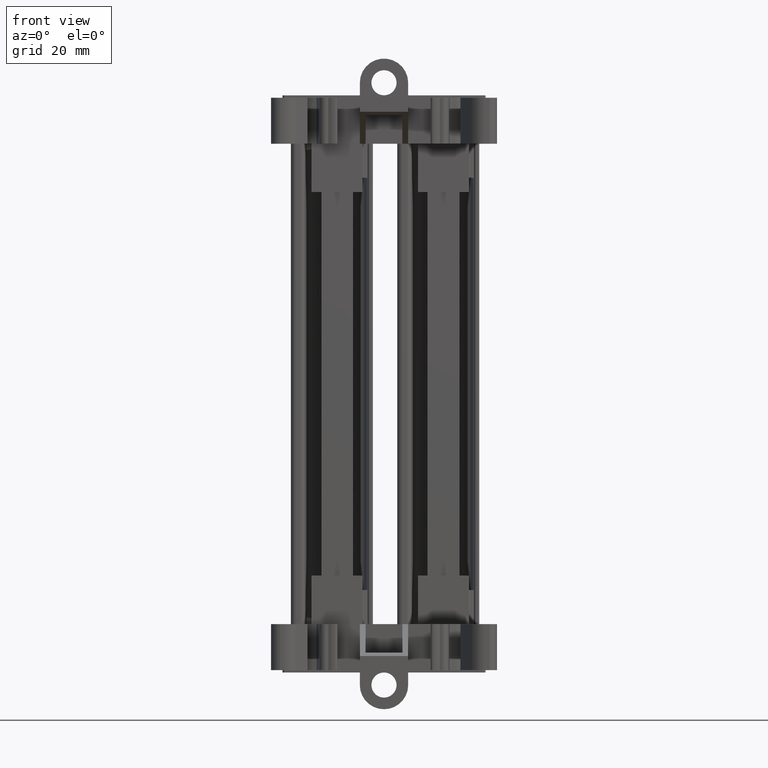
[diagram: clean part render]
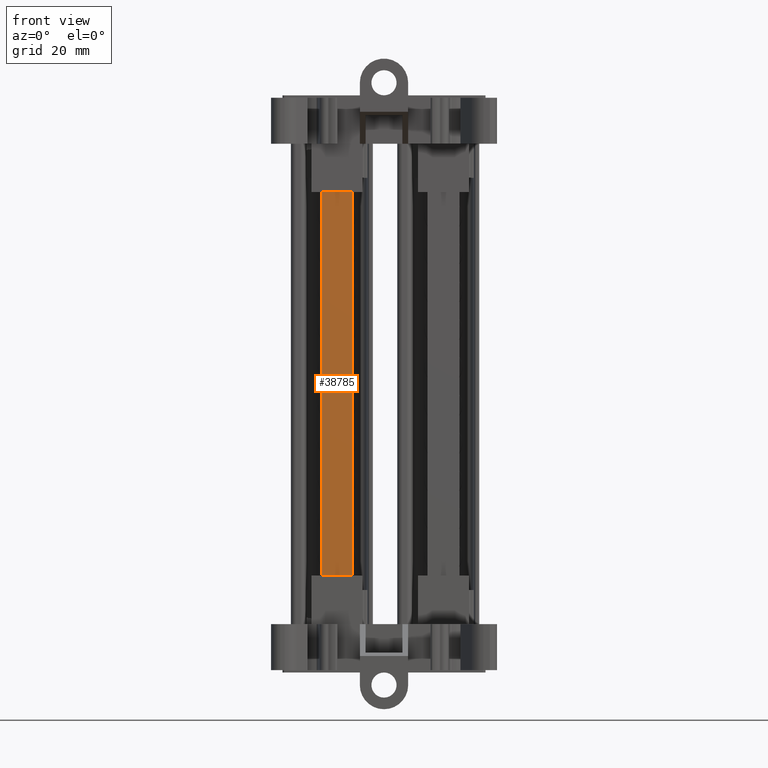
[diagram: same view with one face highlighted and labeled with its STEP entity id]
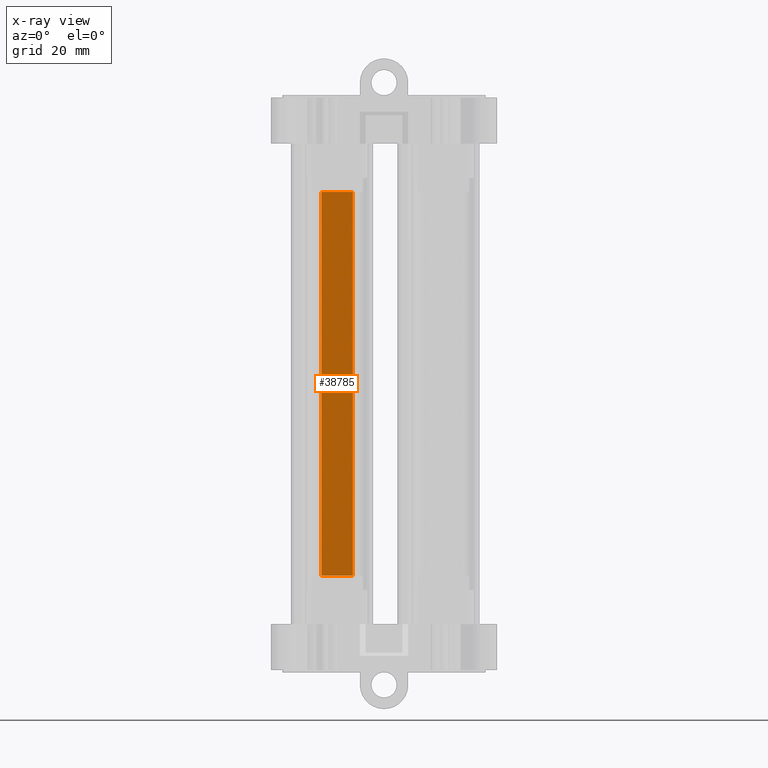
[diagram: x-ray of the same camera — body ghosted, the highlighted face saturated]
A machine part, front view. The second image highlights one B-rep face of the part: STEP entity #38785.
The next image is the same camera in x-ray: the body ghosted, the highlighted face saturated — about 0% of this face is hidden behind the body in this view.
In plain terms, the highlighted planar face has unit normal (-0, 1, -0).
Its self-contained STEP definition (entity closure, byte-faithful):
#1041 = CARTESIAN_POINT ( 'NONE',  ( -59.75163004031018200, 12.93386505222998700, -32.58018049458240000 ) ) ;
#1042 = DIRECTION ( 'NONE',  ( 0.0000000000000000000, 7.965850201685501300E-015, 1.000000000000000000 ) ) ;
#1052 = PLANE ( 'NONE',  #71637 ) ;
#1065 = DIRECTION ( 'NONE',  ( -7.965850201685501300E-015, 1.000000000000000000, -7.965850201685501300E-015 ) ) ;
#1084 = FACE_OUTER_BOUND ( 'NONE', #63528, .T. ) ;
#2229 = EDGE_CURVE ( 'NONE', #31991, #4538, #21883, .T. ) ;
#2459 = EDGE_CURVE ( 'NONE', #4448, #31943, #22232, .T. ) ;
#4448 = VERTEX_POINT ( 'NONE', #23546 ) ;
#4538 = VERTEX_POINT ( 'NONE', #23663 ) ;
#8254 = VECTOR ( 'NONE', #21879, 1000.000000000000000 ) ;
#14337 = EDGE_CURVE ( 'NONE', #4448, #4538, #43835, .T. ) ;
#17985 = VECTOR ( 'NONE', #43845, 1000.000000000000000 ) ;
#21856 = CARTESIAN_POINT ( 'NONE',  ( -53.25163004031017500, 12.93386505223004000, -32.58018049458240000 ) ) ;
#21879 = DIRECTION ( 'NONE',  ( 6.938893903895729800E-018, -7.965850201685501300E-015, -1.000000000000000000 ) ) ;
#21883 = LINE ( 'NONE', #21856, #8254 ) ;
#22194 = DIRECTION ( 'NONE',  ( -6.938893903895729800E-018, 7.965850201685501300E-015, 1.000000000000000000 ) ) ;
#22232 = LINE ( 'NONE', #22240, #34589 ) ;
#22240 = CARTESIAN_POINT ( 'NONE',  ( -59.75163004031017500, 12.93386505222998700, -32.58018049458238600 ) ) ;
#23546 = CARTESIAN_POINT ( 'NONE',  ( -59.75163004029732900, 12.93396610590398100, -22.12168353174844900 ) ) ;
#23663 = CARTESIAN_POINT ( 'NONE',  ( -53.25163004033376500, 12.93396610590451000, -22.12168353174844500 ) ) ;
#25770 = EDGE_CURVE ( 'NONE', #31943, #31991, #67680, .T. ) ;
#31943 = VERTEX_POINT ( 'NONE', #68220 ) ;
#31991 = VERTEX_POINT ( 'NONE', #68315 ) ;
#34589 = VECTOR ( 'NONE', #22194, 1000.000000000000000 ) ;
#38785 = ADVANCED_FACE ( 'NONE', ( #1084 ), #1052, .F. ) ;
#43822 = CARTESIAN_POINT ( 'NONE',  ( -59.75163004031018200, 12.93386505223007000, -22.12168353174844900 ) ) ;
#43835 = LINE ( 'NONE', #43822, #17985 ) ;
#43845 = DIRECTION ( 'NONE',  ( 1.000000000000000000, 7.965850201685501300E-015, -6.345476943569293700E-029 ) ) ;
#44430 = ORIENTED_EDGE ( 'NONE', *, *, #14337, .T. ) ;
#44433 = ORIENTED_EDGE ( 'NONE', *, *, #2459, .F. ) ;
#44436 = ORIENTED_EDGE ( 'NONE', *, *, #25770, .F. ) ;
#44919 = ORIENTED_EDGE ( 'NONE', *, *, #2229, .F. ) ;
#63528 = EDGE_LOOP ( 'NONE', ( #44436, #44433, #44430, #44919 ) ) ;
#65174 = VECTOR ( 'NONE', #67688, 1000.000000000000000 ) ;
#67666 = CARTESIAN_POINT ( 'NONE',  ( -59.75163004031018200, 12.93386505223070100, 56.99607898065145400 ) ) ;
#67680 = LINE ( 'NONE', #67666, #65174 ) ;
#67688 = DIRECTION ( 'NONE',  ( 1.000000000000000000, 7.965850201685501300E-015, 3.513898865141059500E-030 ) ) ;
#68220 = CARTESIAN_POINT ( 'NONE',  ( -59.75163004024351900, 12.93395814553570000, 56.99607898065143300 ) ) ;
#68315 = CARTESIAN_POINT ( 'NONE',  ( -53.25163004034677500, 12.93395814553535500, 56.99607898065145400 ) ) ;
#71637 = AXIS2_PLACEMENT_3D ( 'NONE', #1041, #1065, #1042 ) ;